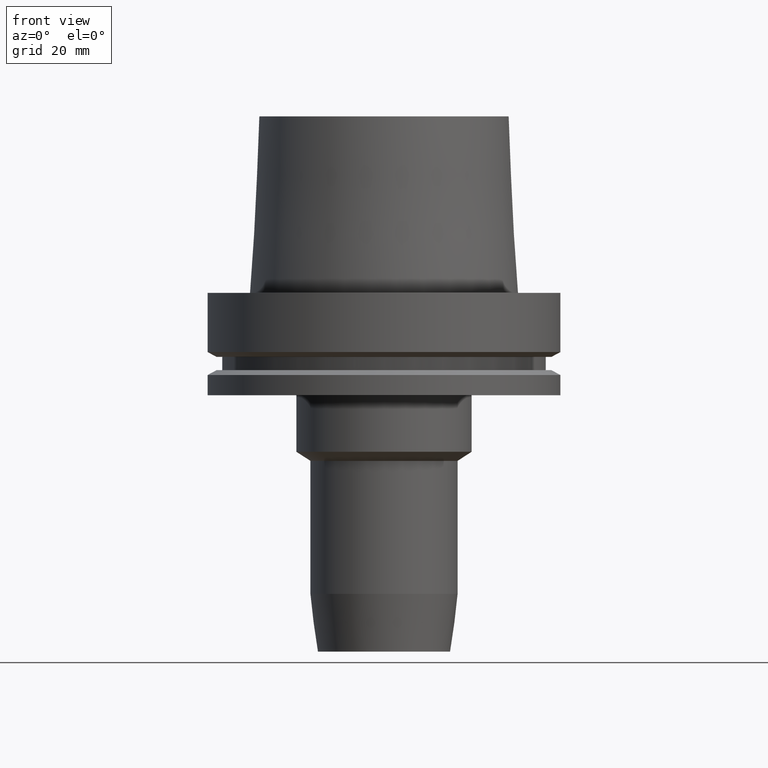
[diagram: clean part render]
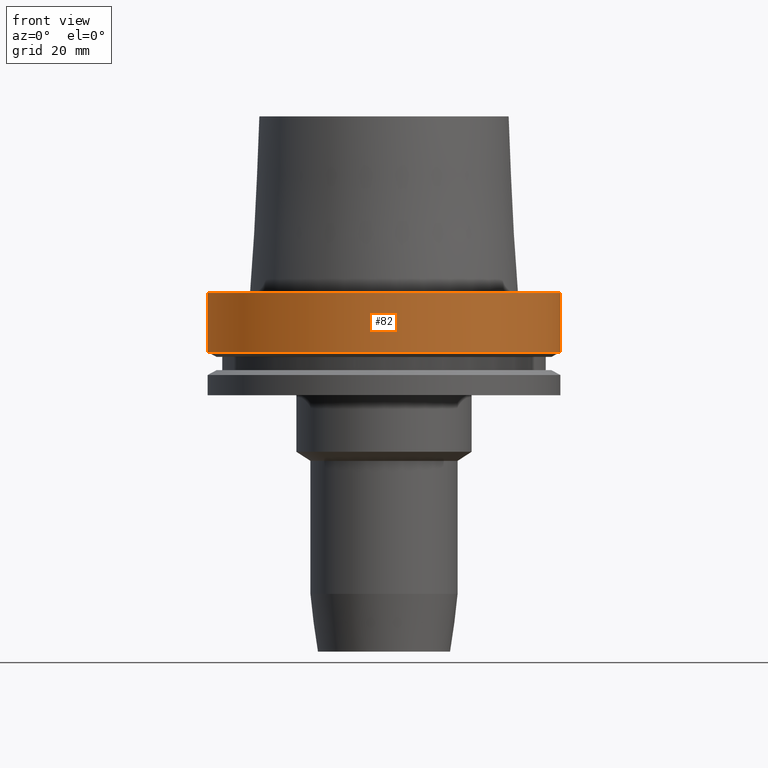
[diagram: same view with one face highlighted and labeled with its STEP entity id]
A machine part, front view. The second image highlights one B-rep face of the part: STEP entity #82.
In plain terms, the highlighted cylindrical surface (bore or boss wall) has radius 50 mm, axis along (0, 0, -1).
Its self-contained STEP definition (entity closure, byte-faithful):
#68=EDGE_CURVE('Unnamed[1]',#173,#173,#174,.T.);
#82=ADVANCED_FACE('Unnamed[1]',(#193,#194),#195,.T.);
#106=EDGE_CURVE('Unnamed[1]',#231,#231,#232,.T.);
#173=VERTEX_POINT('',#310);
#174=CIRCLE('',#311,50.0);
#193=FACE_BOUND('',#334,.T.);
#194=FACE_BOUND('',#335,.T.);
#195=CYLINDRICAL_SURFACE('',#336,50.0);
#231=VERTEX_POINT('',#382);
#232=CIRCLE('',#383,50.0);
#310=CARTESIAN_POINT('',(-1.81547968506605E-031,50.0,-9.76766004263236E-016));
#311=AXIS2_PLACEMENT_3D('',#466,#467,#468);
#334=EDGE_LOOP('',(#486));
#335=EDGE_LOOP('',(#487));
#336=AXIS2_PLACEMENT_3D('',#488,#489,#490);
#382=CARTESIAN_POINT('',(1.0257889421431E-015,50.0,-16.75240474));
#383=AXIS2_PLACEMENT_3D('',#529,#530,#531);
#466=CARTESIAN_POINT('',(0.0,0.0,0.0));
#467=DIRECTION('',(6.12323399573677E-017,1.22464679914735E-016,-1.0));
#468=DIRECTION('',(-1.23259516440783E-032,1.0,1.22464679914735E-016));
#486=ORIENTED_EDGE('',*,*,#106,.F.);
#487=ORIENTED_EDGE('',*,*,#68,.T.);
#488=CARTESIAN_POINT('',(5.12894471071548E-016,1.0257889421431E-015,-8.37620236999999));
#489=DIRECTION('',(6.12323399573677E-017,1.22464679914735E-016,-1.0));
#490=DIRECTION('',(-1.23259516440783E-032,1.0,1.22464679914735E-016));
#529=CARTESIAN_POINT('',(1.0257889421431E-015,2.05157788428619E-015,-16.75240474));
#530=DIRECTION('',(6.12323399573677E-017,1.22464679914735E-016,-1.0));
#531=DIRECTION('',(-1.23259516440783E-032,1.0,1.22464679914735E-016));